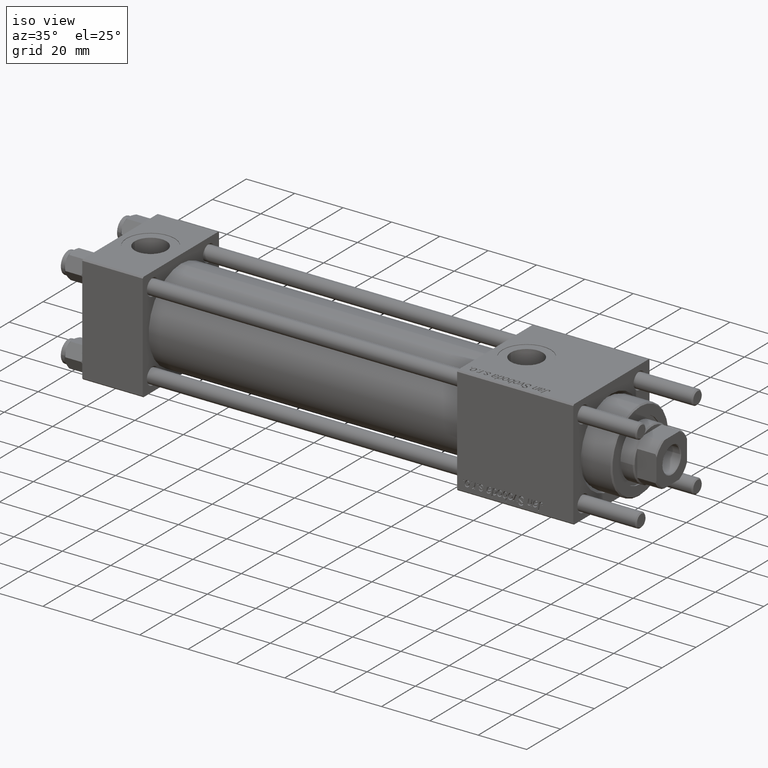
[diagram: clean part render]
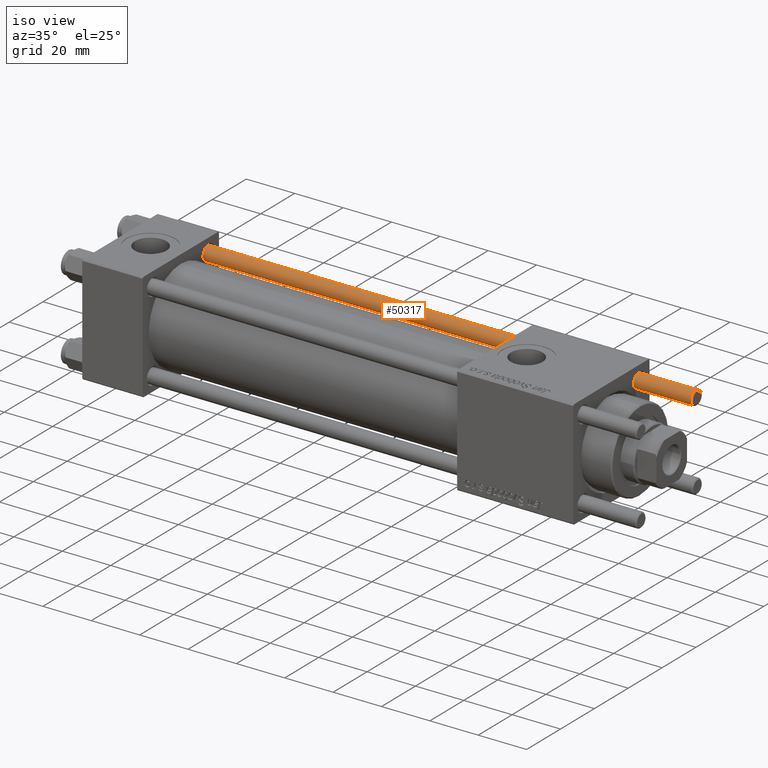
[diagram: same view with one face highlighted and labeled with its STEP entity id]
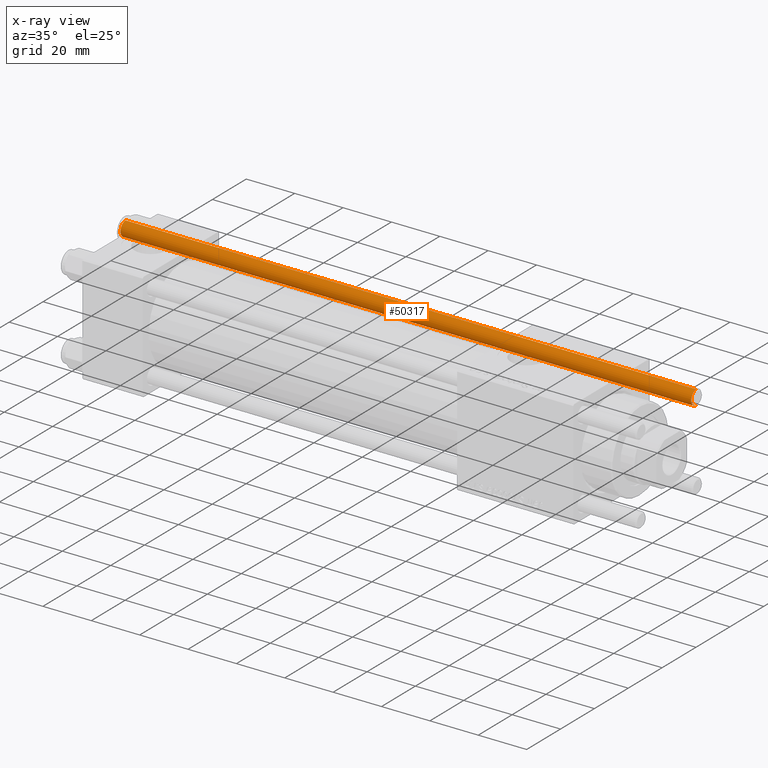
[diagram: x-ray of the same camera — body ghosted, the highlighted face saturated]
A machine part, iso view. The second image highlights one B-rep face of the part: STEP entity #50317.
The next image is the same camera in x-ray: the body ghosted, the highlighted face saturated — about 0% of this face is hidden behind the body in this view.
In plain terms, the highlighted cylindrical surface (edge-blend (fillet) strip) has radius 3 mm, axis along (1, -0, -0).
Its self-contained STEP definition (entity closure, byte-faithful):
#1378 = EDGE_CURVE ( 'NONE', #55095, #13120, #39083, .T. ) ;
#3380 = ORIENTED_EDGE ( 'NONE', *, *, #49741, .T. ) ;
#3399 = EDGE_LOOP ( 'NONE', ( #12091, #3380, #21863, #47604 ) ) ;
#3884 = EDGE_CURVE ( 'NONE', #50906, #9932, #57784, .T. ) ;
#5097 = CARTESIAN_POINT ( 'NONE',  ( 0.000000000000000000, 0.000000000000000000, 0.5000000000000004441 ) ) ;
#6526 = CARTESIAN_POINT ( 'NONE',  ( 3.000000000000000444, 3.673940397442060361E-16, 237.0000000000000000 ) ) ;
#9805 = CIRCLE ( 'NONE', #49508, 3.000000000000000444 ) ;
#9932 = VERTEX_POINT ( 'NONE', #51749 ) ;
#12091 = ORIENTED_EDGE ( 'NONE', *, *, #3884, .F. ) ;
#13120 = VERTEX_POINT ( 'NONE', #29590 ) ;
#13533 = DIRECTION ( 'NONE',  ( -0.000000000000000000, -0.000000000000000000, -1.000000000000000000 ) ) ;
#14836 = AXIS2_PLACEMENT_3D ( 'NONE', #54273, #13533, #19263 ) ;
#14987 = EDGE_CURVE ( 'NONE', #13120, #9932, #9805, .T. ) ;
#16924 = CARTESIAN_POINT ( 'NONE',  ( -3.000000000000000444, 0.000000000000000000, 237.0000000000000000 ) ) ;
#19148 = VECTOR ( 'NONE', #43351, 1000.000000000000000 ) ;
#19263 = DIRECTION ( 'NONE',  ( -1.000000000000000000, 0.000000000000000000, 0.000000000000000000 ) ) ;
#21863 = ORIENTED_EDGE ( 'NONE', *, *, #1378, .T. ) ;
#22231 = DIRECTION ( 'NONE',  ( 1.000000000000000000, 0.000000000000000000, 0.000000000000000000 ) ) ;
#26033 = CYLINDRICAL_SURFACE ( 'NONE', #14836, 3.000000000000000444 ) ;
#29016 = DIRECTION ( 'NONE',  ( 1.000000000000000000, 0.000000000000000000, 0.000000000000000000 ) ) ;
#29590 = CARTESIAN_POINT ( 'NONE',  ( -3.000000000000000444, 0.000000000000000000, 0.5000000000000004441 ) ) ;
#31641 = CARTESIAN_POINT ( 'NONE',  ( 0.000000000000000000, 0.000000000000000000, 236.5000000000000568 ) ) ;
#36781 = CARTESIAN_POINT ( 'NONE',  ( -3.000000000000000444, 0.000000000000000000, 236.5000000000000568 ) ) ;
#37231 = DIRECTION ( 'NONE',  ( -0.000000000000000000, -0.000000000000000000, 1.000000000000000000 ) ) ;
#39083 = LINE ( 'NONE', #16924, #19148 ) ;
#39572 = VECTOR ( 'NONE', #57489, 1000.000000000000000 ) ;
#40388 = CARTESIAN_POINT ( 'NONE',  ( 3.000000000000000444, 3.673940397442060361E-16, 236.5000000000000568 ) ) ;
#43351 = DIRECTION ( 'NONE',  ( -0.000000000000000000, -0.000000000000000000, -1.000000000000000000 ) ) ;
#44264 = FACE_OUTER_BOUND ( 'NONE', #3399, .T. ) ;
#46210 = DIRECTION ( 'NONE',  ( 0.000000000000000000, 0.000000000000000000, -1.000000000000000000 ) ) ;
#47604 = ORIENTED_EDGE ( 'NONE', *, *, #14987, .T. ) ;
#49508 = AXIS2_PLACEMENT_3D ( 'NONE', #5097, #37231, #29016 ) ;
#49658 = CIRCLE ( 'NONE', #58355, 3.000000000000000444 ) ;
#49741 = EDGE_CURVE ( 'NONE', #50906, #55095, #49658, .T. ) ;
#50317 = ADVANCED_FACE ( 'NONE', ( #44264 ), #26033, .T. ) ;
#50906 = VERTEX_POINT ( 'NONE', #40388 ) ;
#51749 = CARTESIAN_POINT ( 'NONE',  ( 3.000000000000000444, 3.673940397442060361E-16, 0.5000000000000004441 ) ) ;
#54273 = CARTESIAN_POINT ( 'NONE',  ( 0.000000000000000000, 0.000000000000000000, 237.0000000000000000 ) ) ;
#55095 = VERTEX_POINT ( 'NONE', #36781 ) ;
#57489 = DIRECTION ( 'NONE',  ( -0.000000000000000000, -0.000000000000000000, -1.000000000000000000 ) ) ;
#57784 = LINE ( 'NONE', #6526, #39572 ) ;
#58355 = AXIS2_PLACEMENT_3D ( 'NONE', #31641, #46210, #22231 ) ;